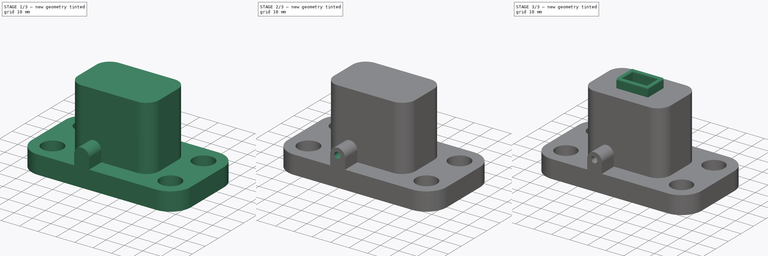
[diagram: build sequence overview — one tinted view per stage of 3, left to right]
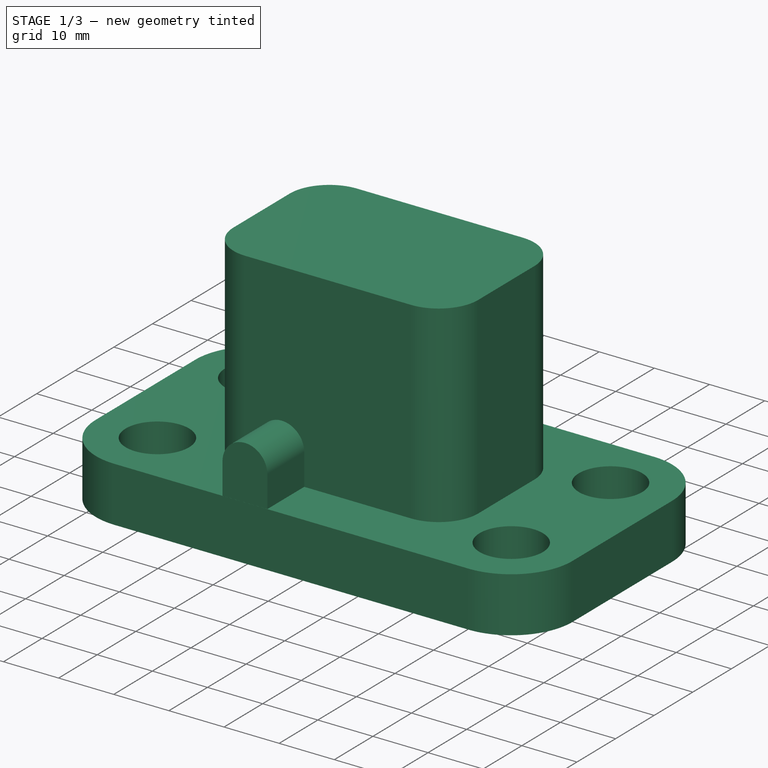
[diagram: stage 1 of 3 — iso view after this stage's code; geometry added in this stage tinted green]
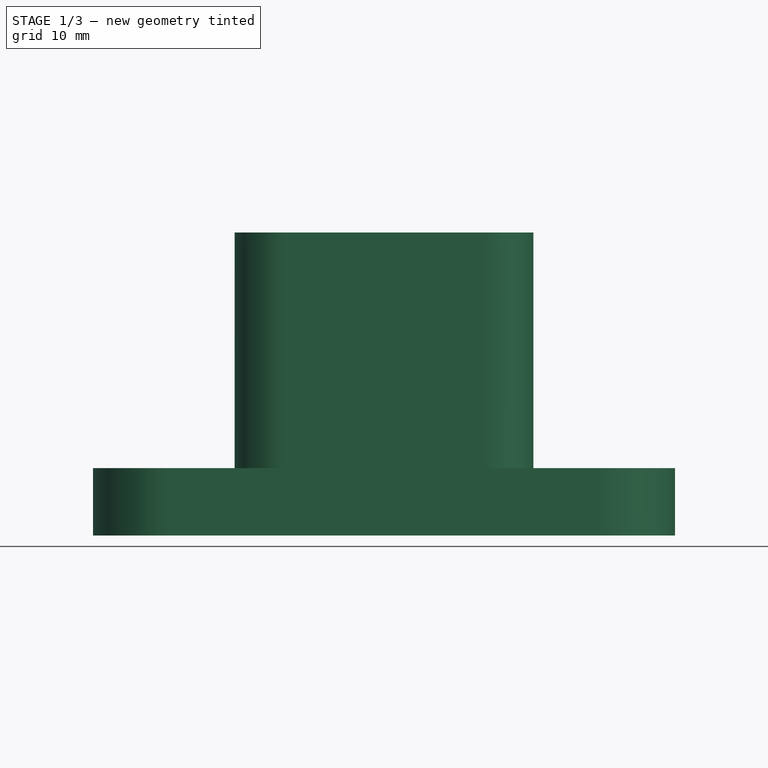
[diagram: stage 1 of 3 — front view after this stage's code; geometry added in this stage tinted green]
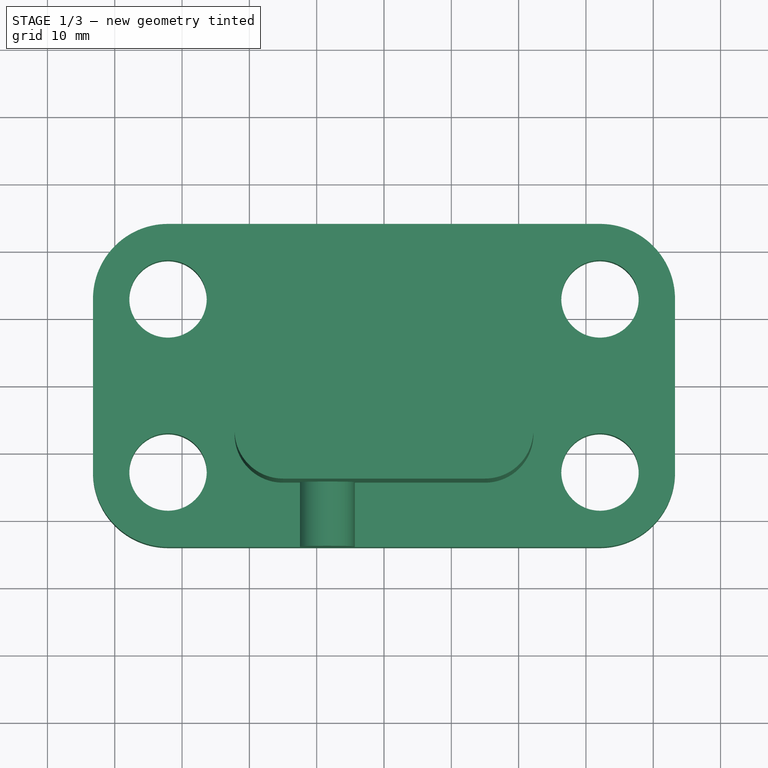
[diagram: stage 1 of 3 — top view after this stage's code; geometry added in this stage tinted green]
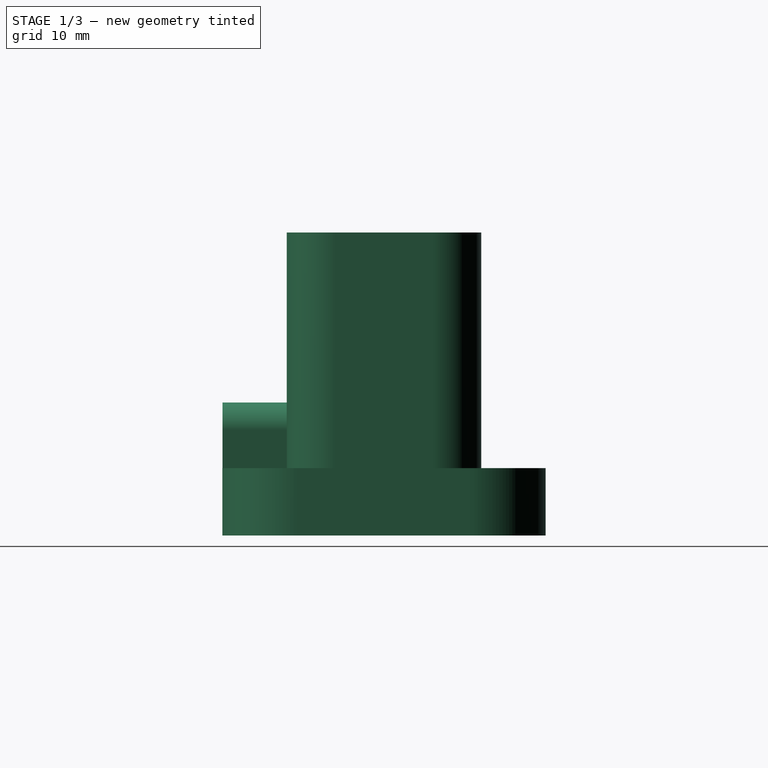
[diagram: stage 1 of 3 — right view after this stage's code; geometry added in this stage tinted green]
FCSTD DOCUMENT  (FreeCAD 0.21R33771 (Git))
Label: ex69
License: All rights reserved
LicenseURL: https://en.wikipedia.org/wiki/All_rights_reserved
objects: Sketcher::SketchObject×6, PartDesign::Pad×4, PartDesign::Pocket×3, PartDesign::Fillet×1, PartDesign::Body×1
note: 23 computed .brp shape members not serialized (recipe doc carries the construction recipe); baked Part::Feature solids carry a one-line shape summary decoded from their .brp

FEATURE [Sketcher::SketchObject] Sketch
  FullyConstrained = false
  MapMode = 5
  Support = -> [XY_Plane]
  sketch-geometry (14):
    g0: ArcOfCircle CenterX=-32.0856 CenterY=12.8595 CenterZ=0 NormalX=0 NormalY=0 NormalZ=1 AngleXU=0 Radius=11.1468 StartAngle=1.5708 EndAngle=3.14159
    g1: LineSegment StartX=-32.0856 StartY=24.0064 StartZ=0 EndX=32.0856 EndY=24.0064 EndZ=0
    g2: ArcOfCircle CenterX=32.0856 CenterY=12.8595 CenterZ=0 NormalX=0 NormalY=0 NormalZ=1 AngleXU=0 Radius=11.1468 StartAngle=1e-16 EndAngle=1.5708
    g3: LineSegment StartX=43.2325 StartY=12.8595 StartZ=0 EndX=43.2325 EndY=-12.8595 EndZ=0
    g4: ArcOfCircle CenterX=32.0856 CenterY=-12.8595 CenterZ=0 NormalX=0 NormalY=0 NormalZ=1 AngleXU=0 Radius=11.1468 StartAngle=4.71239 EndAngle=6.28319
    g5: LineSegment StartX=32.0856 StartY=-24.0064 StartZ=0 EndX=-32.0856 EndY=-24.0064 EndZ=0
    g6: ArcOfCircle CenterX=-32.0856 CenterY=-12.8595 CenterZ=0 NormalX=0 NormalY=0 NormalZ=1 AngleXU=0 Radius=11.1468 StartAngle=3.14159 EndAngle=4.71239
    g7: LineSegment StartX=-43.2325 StartY=-12.8595 StartZ=0 EndX=-43.2325 EndY=12.8595 EndZ=0
    g8: GeomPoint X=-43.2325 Y=24.0064 Z=0
    g9: GeomPoint X=43.2325 Y=-24.0064 Z=0
    g10: Circle CenterX=-32.0856 CenterY=12.8595 CenterZ=0 NormalX=0 NormalY=0 NormalZ=1 AngleXU=0 Radius=5.75027
    g11: Circle CenterX=-32.0856 CenterY=-12.8595 CenterZ=0 NormalX=0 NormalY=0 NormalZ=1 AngleXU=0 Radius=5.75027
    g12: Circle CenterX=32.0856 CenterY=12.8595 CenterZ=0 NormalX=0 NormalY=0 NormalZ=1 AngleXU=0 Radius=5.75027
    g13: Circle CenterX=32.0856 CenterY=-12.8595 CenterZ=0 NormalX=0 NormalY=0 NormalZ=1 AngleXU=0 Radius=5.75027
  constraints (27):
    c: Tangent(g0,g1) = 1.5708
    c: Tangent(g1,g2) = 1.5708
    c: Tangent(g2,g3) = 1.5708
    c: Tangent(g3,g4) = 1.5708
    c: Tangent(g4,g5) = 1.5708
    c: Tangent(g5,g6) = 1.5708
    c: Tangent(g6,g7) = 1.5708
    c: Tangent(g7,g0) = 1.5708
    c: Horizontal(g1)
    c: Horizontal(g5)
    c: Vertical(g3)
    c: Vertical(g7)
    c: Equal(g0,g2)
    c: Equal(g2,g4)
    c: Equal(g4,g6)
    c: PointOnObject(g8,g1)
    c: PointOnObject(g8,g7)
    c: PointOnObject(g9,g3)
    c: PointOnObject(g9,g5)
    c: Symmetric(g2,g6,g-1)
    c: Coincident(g10,g0)
    c: Coincident(g11,g6)
    c: Coincident(g12,g2)
    c: Coincident(g13,g4)
    c: Equal(g10,g12)
    c: Equal(g12,g13)
    c: Equal(g13,g11)
FEATURE [PartDesign::Pad] Pad
  Direction = (0,0,1)
  Length = 10
  Length2 = 10
  Profile = -> Sketch
  ReferenceAxis = -> Sketch [N_Axis]
  Type = 0
FEATURE [Sketcher::SketchObject] Sketch001
  FullyConstrained = false
  MapMode = 5
  Placement = pos=(0,0,10) rot=(0,0,1;0rad)
  Support = -> [Pad]
  sketch-geometry (10):
    g0: ArcOfCircle CenterX=-15.0042 CenterY=7.255 CenterZ=0 NormalX=0 NormalY=0 NormalZ=1 AngleXU=0 Radius=7.18785 StartAngle=1.5708 EndAngle=3.14159
    g1: LineSegment StartX=-15.0042 StartY=14.4428 StartZ=0 EndX=15.0042 EndY=14.4428 EndZ=0
    g2: ArcOfCircle CenterX=15.0042 CenterY=7.255 CenterZ=0 NormalX=0 NormalY=0 NormalZ=1 AngleXU=0 Radius=7.18785 StartAngle=1e-16 EndAngle=1.5708
    g3: LineSegment StartX=22.192 StartY=7.255 StartZ=0 EndX=22.192 EndY=-7.255 EndZ=0
    g4: ArcOfCircle CenterX=15.0042 CenterY=-7.255 CenterZ=0 NormalX=0 NormalY=0 NormalZ=1 AngleXU=0 Radius=7.18785 StartAngle=4.71239 EndAngle=6.28319
    g5: LineSegment StartX=15.0042 StartY=-14.4428 StartZ=0 EndX=-15.0042 EndY=-14.4428 EndZ=0
    g6: ArcOfCircle CenterX=-15.0042 CenterY=-7.255 CenterZ=0 NormalX=0 NormalY=0 NormalZ=1 AngleXU=0 Radius=7.18785 StartAngle=3.14159 EndAngle=4.71239
    g7: LineSegment StartX=-22.192 StartY=-7.255 StartZ=0 EndX=-22.192 EndY=7.255 EndZ=0
    g8: GeomPoint X=-22.192 Y=14.4428 Z=0
    g9: GeomPoint X=22.192 Y=-14.4428 Z=0
  constraints (20):
    c: Tangent(g0,g1) = 1.5708
    c: Tangent(g1,g2) = 1.5708
    c: Tangent(g2,g3) = 1.5708
    c: Tangent(g3,g4) = 1.5708
    c: Tangent(g4,g5) = 1.5708
    c: Tangent(g5,g6) = 1.5708
    c: Tangent(g6,g7) = 1.5708
    c: Tangent(g7,g0) = 1.5708
    c: Horizontal(g1)
    c: Horizontal(g5)
    c: Vertical(g3)
    c: Vertical(g7)
    c: Equal(g0,g2)
    c: Equal(g2,g4)
    c: Equal(g4,g6)
    c: PointOnObject(g8,g1)
    c: PointOnObject(g8,g7)
    c: PointOnObject(g9,g3)
    c: PointOnObject(g9,g5)
    c: Symmetric(g0,g4,g-1)
FEATURE [PartDesign::Pad] Pad001
  BaseFeature = -> Pad
  Direction = (0,0,1)
  Length = 35
  Length2 = 10
  Profile = -> Sketch001
  ReferenceAxis = -> Sketch001 [N_Axis]
  Type = 0
FEATURE [Sketcher::SketchObject] Sketch002
  FullyConstrained = false
  MapMode = 5
  Placement = pos=(0,-14.4428,0) rot=(1,0,0;1.5708rad)
  Support = -> [Pad001]
  sketch-geometry (4):
    g0: ArcOfCircle CenterX=-8.41792 CenterY=15.6898 CenterZ=0 NormalX=0 NormalY=0 NormalZ=1 AngleXU=0 Radius=4.06433 StartAngle=2e-16 EndAngle=3.14159
    g1: ArcOfCircle CenterX=-8.41792 CenterY=4.87442 CenterZ=0 NormalX=0 NormalY=0 NormalZ=1 AngleXU=0 Radius=4.06433 StartAngle=3.14159 EndAngle=6.28319
    g2: LineSegment StartX=-12.4822 StartY=15.6898 StartZ=0 EndX=-12.4822 EndY=4.87442 EndZ=0
    g3: LineSegment StartX=-4.3536 StartY=4.87442 StartZ=0 EndX=-4.3536 EndY=15.6898 EndZ=0
  constraints (6):
    c: Tangent(g0,g2) = -1.5708
    c: Tangent(g2,g1) = -1.5708
    c: Tangent(g1,g3) = -1.5708
    c: Tangent(g3,g0) = -1.5708
    c: Equal(g0,g1)
    c: Vertical(g2)
FEATURE [PartDesign::Pad] Pad002
  BaseFeature = -> Pad001
  Direction = (0,-1,2e-16)
  Length = 9.55
  Length2 = 10
  Profile = -> Sketch002
  ReferenceAxis = -> Sketch002 [N_Axis]
  Type = 0
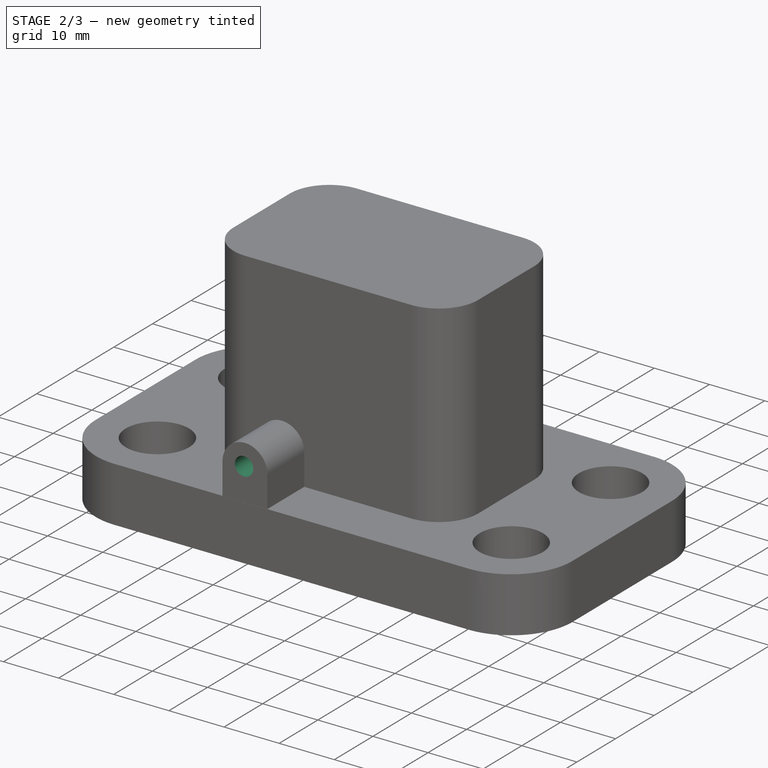
[diagram: stage 2 of 3 — iso view after this stage's code; geometry added in this stage tinted green]
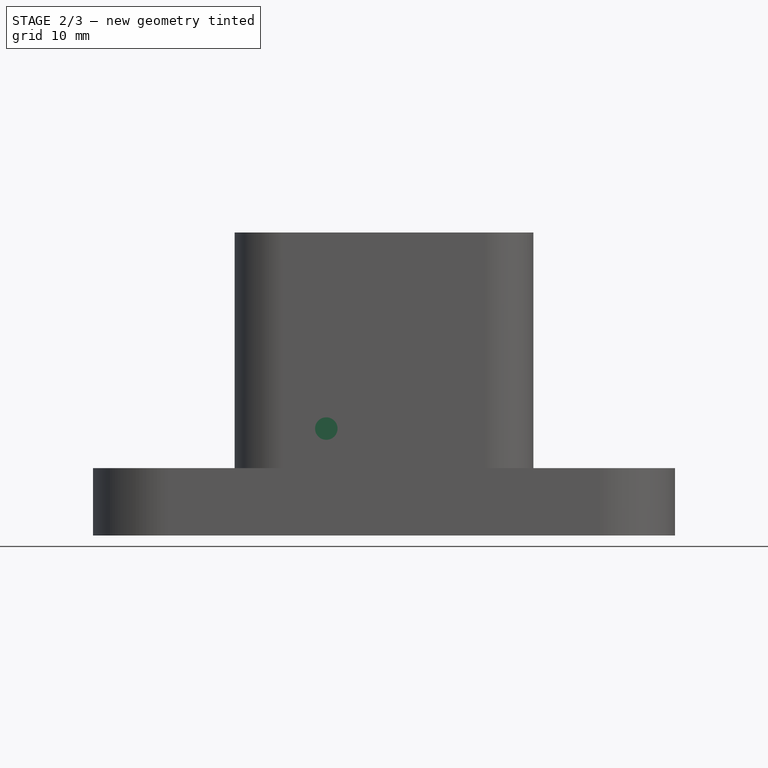
[diagram: stage 2 of 3 — front view after this stage's code; geometry added in this stage tinted green]
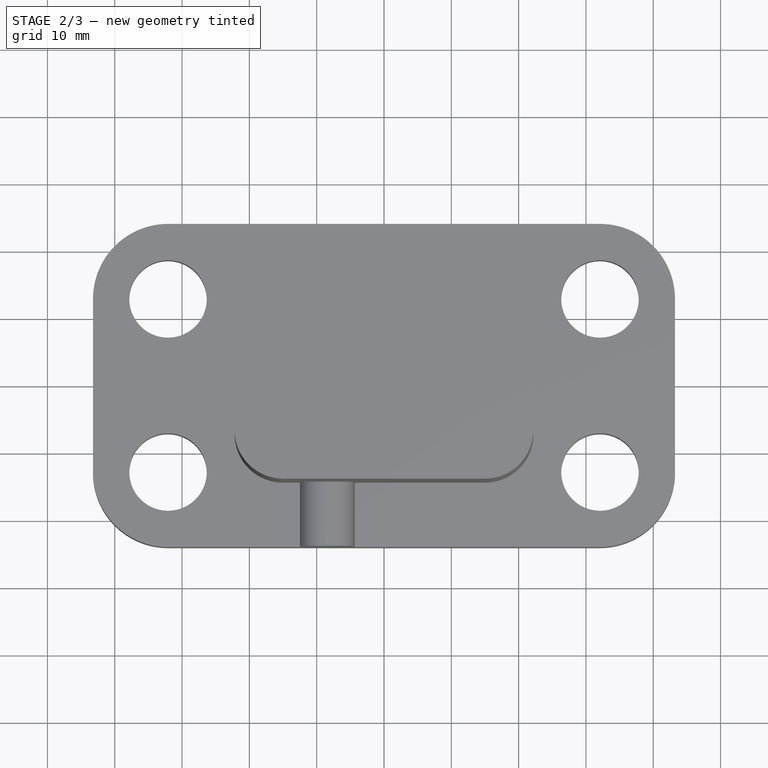
[diagram: stage 2 of 3 — top view after this stage's code; geometry added in this stage tinted green]
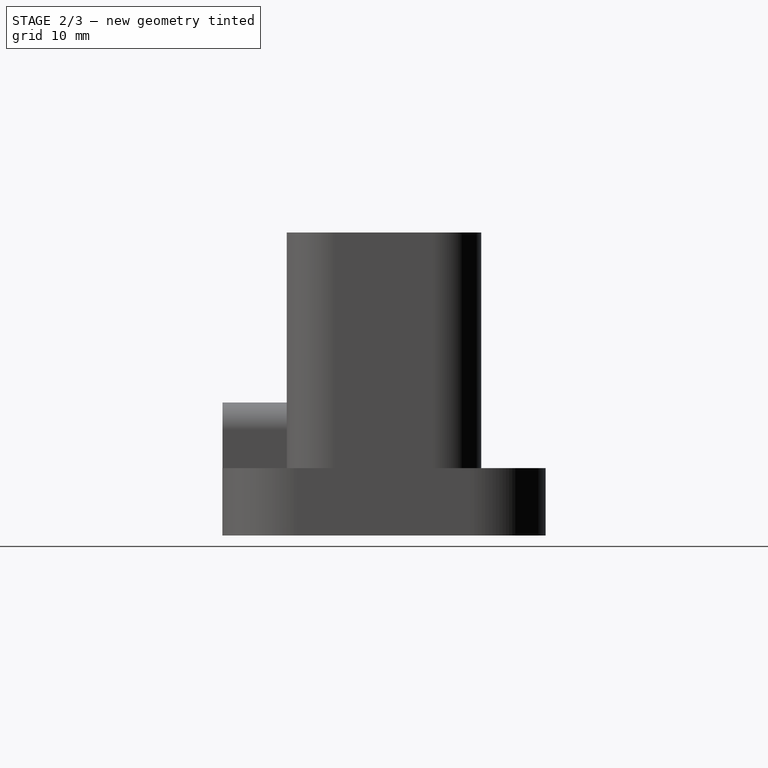
[diagram: stage 2 of 3 — right view after this stage's code; geometry added in this stage tinted green]
FEATURE [Sketcher::SketchObject] Sketch003
  FullyConstrained = false
  MapMode = 5
  Placement = pos=(0,-23.9928,4.4e-15) rot=(1,0,0;1.5708rad)
  Support = -> [Pad002]
  sketch-geometry (1):
    g0: Circle CenterX=-8.57128 CenterY=15.8789 CenterZ=0 NormalX=0 NormalY=0 NormalZ=1 AngleXU=0 Radius=1.67073
FEATURE [PartDesign::Pocket] Pocket
  BaseFeature = -> Pad002
  Direction = (0,1,-2e-16)
  Length = 28
  Length2 = 5
  Profile = -> Sketch003
  ReferenceAxis = -> Sketch003 [N_Axis]
  Type = 0
FEATURE [Sketcher::SketchObject] Sketch004
  FullyConstrained = false
  MapMode = 5
  Placement = pos=(0,0,0) rot=(1,0,0;3.14159rad)
  Support = -> [Pocket]
  sketch-geometry (5):
    g0: LineSegment StartX=-16.8957 StartY=-9.07638 StartZ=0 EndX=-16.8957 EndY=9.07638 EndZ=0
    g1: LineSegment StartX=-16.8957 StartY=9.07638 StartZ=0 EndX=16.8957 EndY=9.07638 EndZ=0
    g2: LineSegment StartX=16.8957 StartY=9.07638 StartZ=0 EndX=16.8957 EndY=-9.07638 EndZ=0
    g3: LineSegment StartX=16.8957 StartY=-9.07638 StartZ=0 EndX=-16.8957 EndY=-9.07638 EndZ=0
    g4: GeomPoint X=0 Y=0 Z=0
  constraints (10):
    c: Coincident(g0,g1)
    c: Coincident(g1,g2)
    c: Coincident(g2,g3)
    c: Coincident(g3,g0)
    c: Horizontal(g1)
    c: Horizontal(g3)
    c: Vertical(g0)
    c: Vertical(g2)
    c: Symmetric(g1,g0,g4)
    c: Coincident(g4,g-1)
FEATURE [PartDesign::Pocket] Pocket001
  BaseFeature = -> Pocket
  Direction = (0,0,1)
  Length = 43
  Length2 = 5
  Profile = -> Sketch004
  ReferenceAxis = -> Sketch004 [N_Axis]
  Type = 0
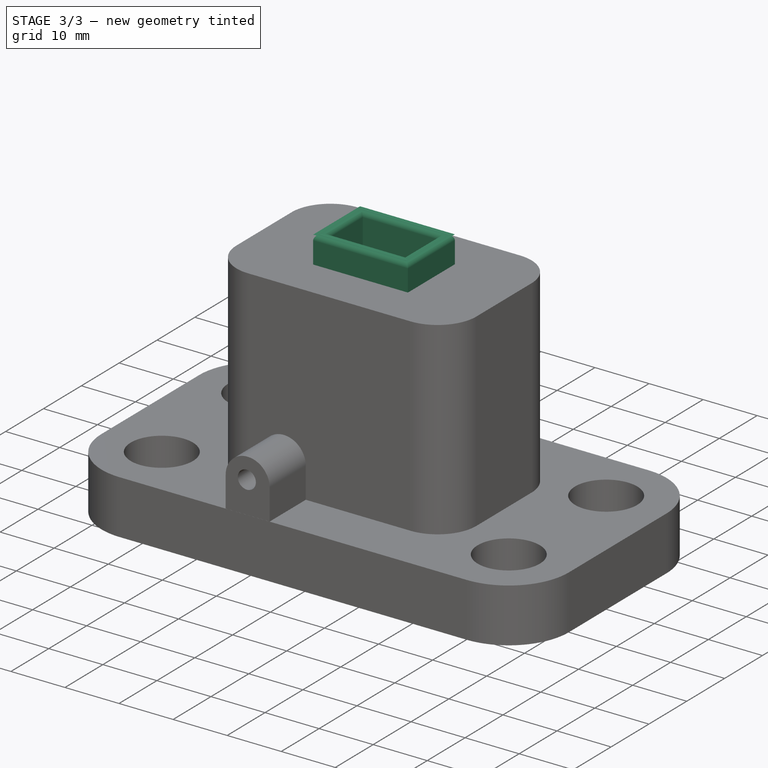
[diagram: stage 3 of 3 — iso view after this stage's code; geometry added in this stage tinted green]
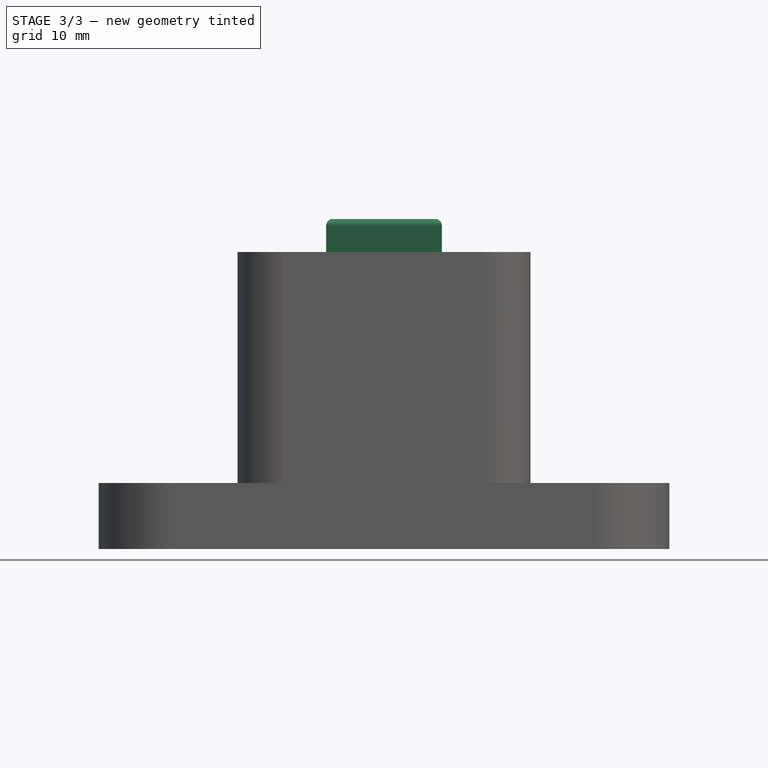
[diagram: stage 3 of 3 — front view after this stage's code; geometry added in this stage tinted green]
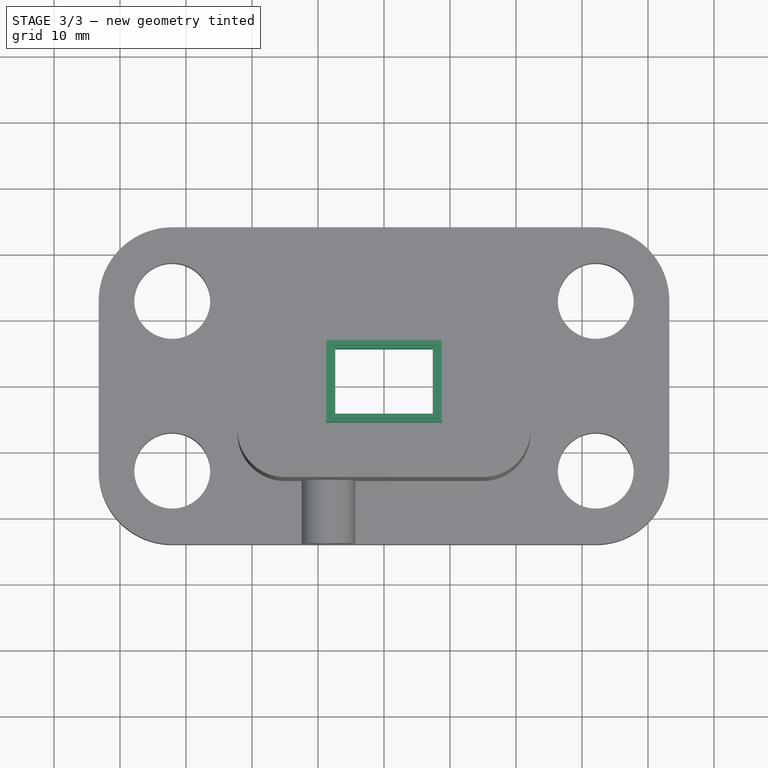
[diagram: stage 3 of 3 — top view after this stage's code; geometry added in this stage tinted green]
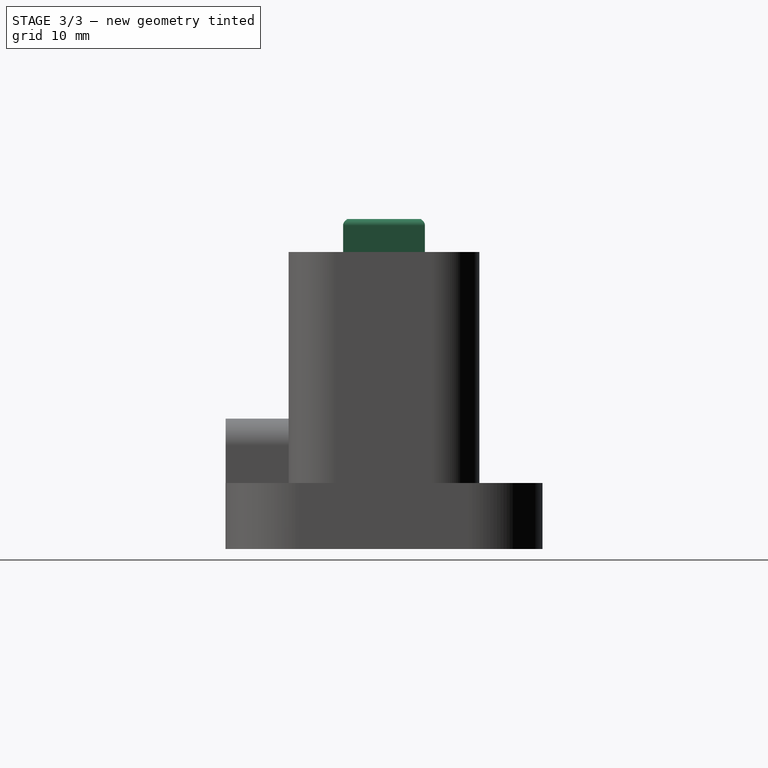
[diagram: stage 3 of 3 — right view after this stage's code; geometry added in this stage tinted green]
FEATURE [Sketcher::SketchObject] Sketch005
  FullyConstrained = false
  MapMode = 5
  Placement = pos=(0,0,45) rot=(0,0,1;0rad)
  Support = -> [Pocket001]
  sketch-geometry (10):
    g0: LineSegment StartX=-8.76619 StartY=-6.20002 StartZ=0 EndX=-8.76619 EndY=6.20002 EndZ=0
    g1: LineSegment StartX=-8.76619 StartY=6.20002 StartZ=0 EndX=8.76619 EndY=6.20002 EndZ=0
    g2: LineSegment StartX=8.76619 StartY=6.20002 StartZ=0 EndX=8.76619 EndY=-6.20002 EndZ=0
    g3: LineSegment StartX=8.76619 StartY=-6.20002 StartZ=0 EndX=-8.76619 EndY=-6.20002 EndZ=0
    g4: GeomPoint X=0 Y=0 Z=0
    g5: LineSegment StartX=-7.37858 StartY=-4.91915 StartZ=0 EndX=-7.37858 EndY=4.91915 EndZ=0
    g6: LineSegment StartX=-7.37858 StartY=4.91915 StartZ=0 EndX=7.37858 EndY=4.91915 EndZ=0
    g7: LineSegment StartX=7.37858 StartY=4.91915 StartZ=0 EndX=7.37858 EndY=-4.91915 EndZ=0
    g8: LineSegment StartX=7.37858 StartY=-4.91915 StartZ=0 EndX=-7.37858 EndY=-4.91915 EndZ=0
    g9: GeomPoint X=0 Y=0 Z=0
  constraints (20):
    c: Coincident(g0,g1)
    c: Coincident(g1,g2)
    c: Coincident(g2,g3)
    c: Coincident(g3,g0)
    c: Horizontal(g1)
    c: Horizontal(g3)
    c: Vertical(g0)
    c: Vertical(g2)
    c: Symmetric(g1,g0,g4)
    c: Coincident(g4,g-1)
    c: Coincident(g5,g6)
    c: Coincident(g6,g7)
    c: Coincident(g7,g8)
    c: Coincident(g8,g5)
    c: Horizontal(g6)
    c: Horizontal(g8)
    c: Vertical(g5)
    c: Vertical(g7)
    c: Symmetric(g6,g5,g9)
    c: Coincident(g9,g4)
FEATURE [PartDesign::Pad] Pad003
  BaseFeature = -> Pocket001
  Direction = (0,0,1)
  Length = 5
  Length2 = 10
  Profile = -> Sketch005
  ReferenceAxis = -> Sketch005 [N_Axis]
  Type = 0
FEATURE [PartDesign::Pocket] Pocket002
  BaseFeature = -> Pad003
  Direction = (0,0,-1)
  Length = 12
  Length2 = 5
  Profile = -> Pad003 [Face43]
  Type = 1
FEATURE [PartDesign::Fillet] Fillet
  Base = -> Pocket002 [Face46]
  BaseFeature = -> Pocket002
  Radius = 1
  SupportTransform = false
  UseAllEdges = false
FEATURE [PartDesign::Body] Body
  Group = -> [Sketch,Pad,Sketch001,Pad001,Sketch002,Pad002,Sketch003,Pocket,Sketch004,Pocket001,Sketch005,Pad003,Pocket002,Fillet]
  Origin = -> Origin
  Tip = -> Fillet
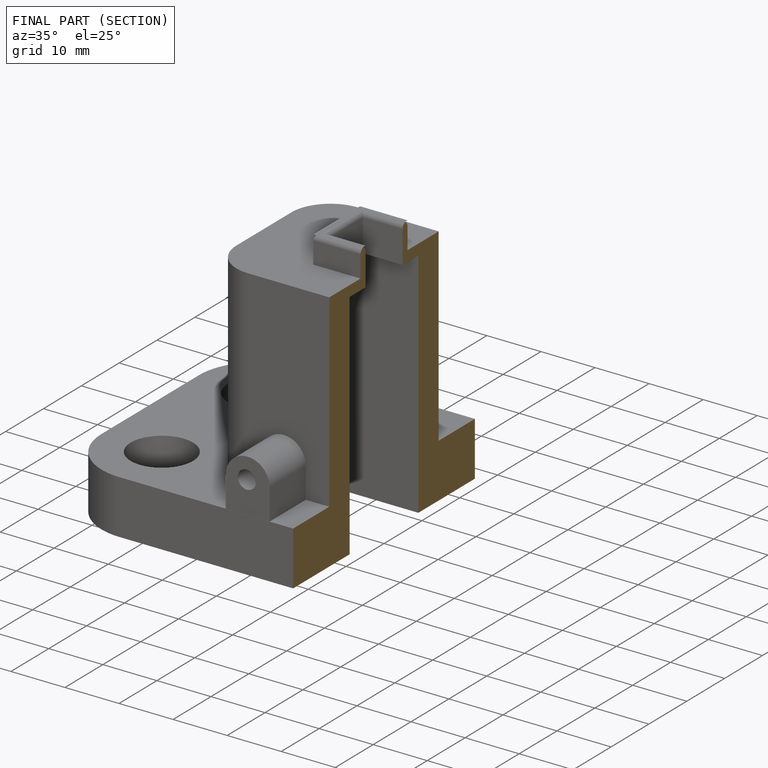
[diagram: finished part — half-section view (interior)]
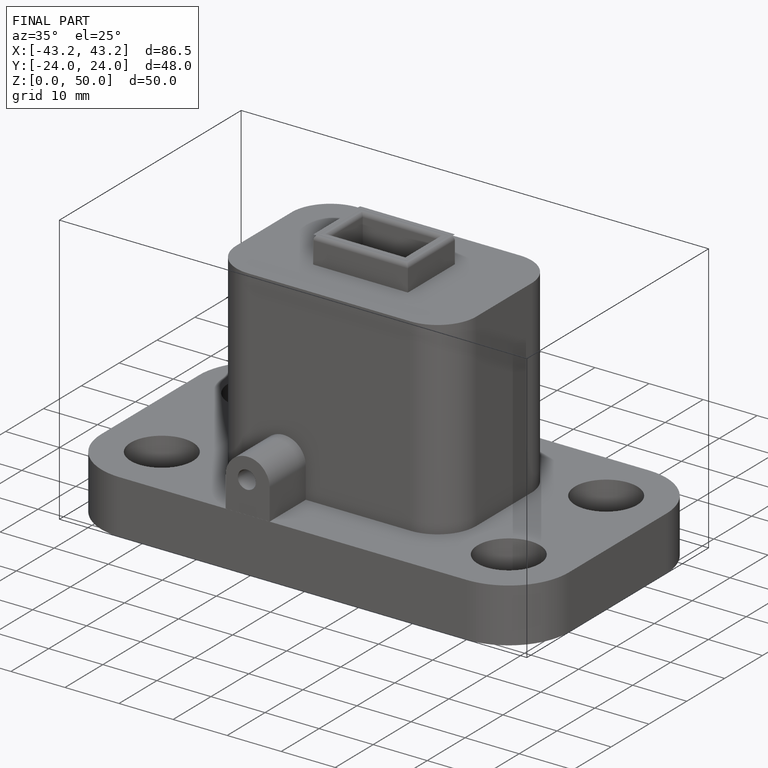
[diagram: finished part — iso view with bounding-box wireframe]
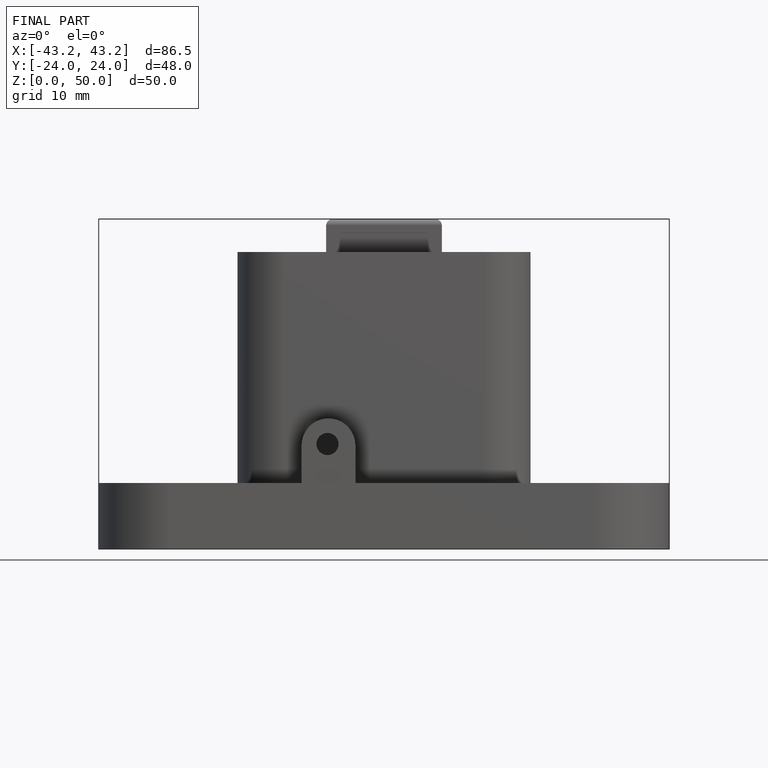
[diagram: finished part — front view with bounding-box wireframe]
